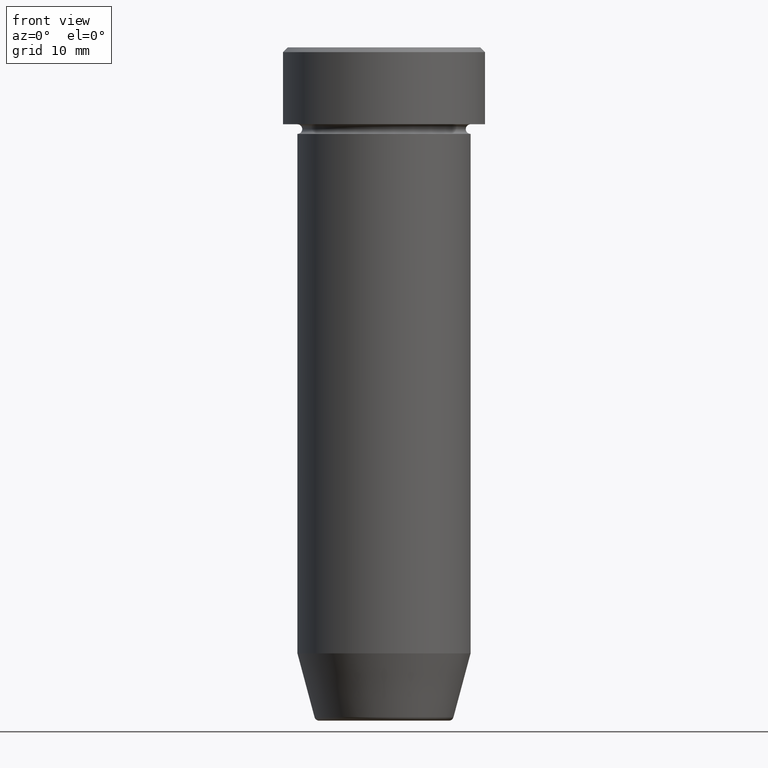
[diagram: clean part render]
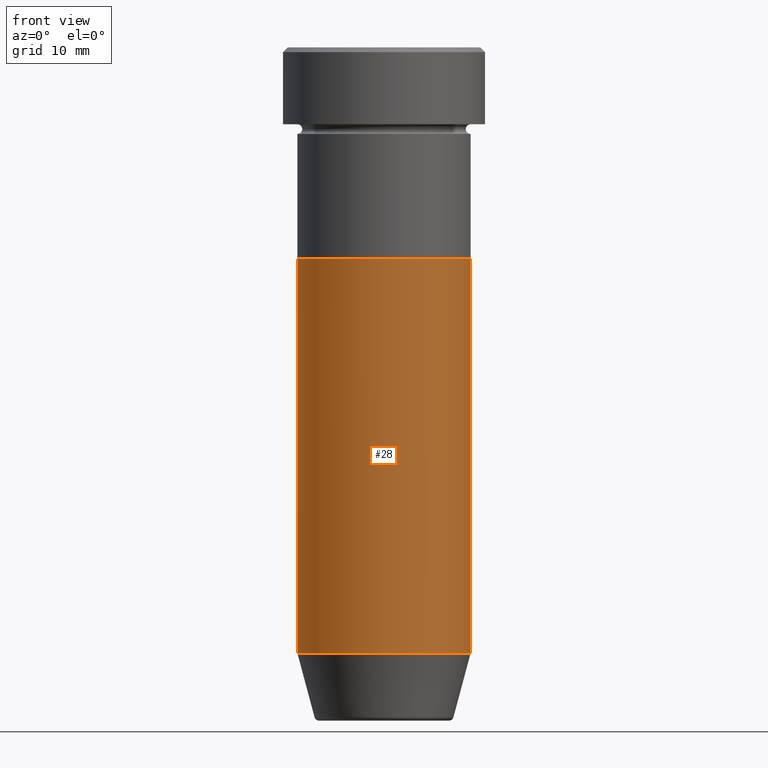
[diagram: same view with one face highlighted and labeled with its STEP entity id]
A machine part, front view. The second image highlights one B-rep face of the part: STEP entity #28.
In plain terms, the highlighted cylindrical surface (partial cylindrical patch) has radius 9 mm, axis along (-0, -0, 1).
Its self-contained STEP definition (entity closure, byte-faithful):
#28 = ADVANCED_FACE ( 'NONE', ( #471 ), #130, .T. ) ;
#30 = ORIENTED_EDGE ( 'NONE', *, *, #490, .F. ) ;
#32 = CARTESIAN_POINT ( 'NONE',  ( -9.000000000000000000, 1.102182119232617714E-15, -63.00000000000000000 ) ) ;
#57 = DIRECTION ( 'NONE',  ( 1.000000000000000000, 0.000000000000000000, 0.000000000000000000 ) ) ;
#58 = VERTEX_POINT ( 'NONE', #240 ) ;
#59 = ORIENTED_EDGE ( 'NONE', *, *, #138, .F. ) ;
#94 = CIRCLE ( 'NONE', #526, 9.000000000000000000 ) ;
#96 = CARTESIAN_POINT ( 'NONE',  ( -9.000000000000000000, 1.102182119232617714E-15, -22.00000000000000000 ) ) ;
#103 = CIRCLE ( 'NONE', #334, 9.000000000000000000 ) ;
#130 = CYLINDRICAL_SURFACE ( 'NONE', #428, 9.000000000000000000 ) ;
#138 = EDGE_CURVE ( 'NONE', #289, #460, #524, .T. ) ;
#164 = CARTESIAN_POINT ( 'NONE',  ( -9.000000000000000000, 1.102182119232617714E-15, 0.000000000000000000 ) ) ;
#187 = LINE ( 'NONE', #542, #293 ) ;
#188 = DIRECTION ( 'NONE',  ( 1.000000000000000000, 0.000000000000000000, 0.000000000000000000 ) ) ;
#240 = CARTESIAN_POINT ( 'NONE',  ( 9.000000000000000000, 0.000000000000000000, -63.00000000000000000 ) ) ;
#271 = DIRECTION ( 'NONE',  ( -0.000000000000000000, -0.000000000000000000, 1.000000000000000000 ) ) ;
#289 = VERTEX_POINT ( 'NONE', #32 ) ;
#293 = VECTOR ( 'NONE', #271, 1000.000000000000000 ) ;
#316 = ORIENTED_EDGE ( 'NONE', *, *, #343, .T. ) ;
#324 = CARTESIAN_POINT ( 'NONE',  ( 0.000000000000000000, 0.000000000000000000, 0.000000000000000000 ) ) ;
#334 = AXIS2_PLACEMENT_3D ( 'NONE', #519, #425, #188 ) ;
#343 = EDGE_CURVE ( 'NONE', #58, #591, #187, .T. ) ;
#356 = DIRECTION ( 'NONE',  ( -0.000000000000000000, -0.000000000000000000, 1.000000000000000000 ) ) ;
#367 = DIRECTION ( 'NONE',  ( 1.000000000000000000, 0.000000000000000000, 0.000000000000000000 ) ) ;
#387 = DIRECTION ( 'NONE',  ( -0.000000000000000000, -0.000000000000000000, 1.000000000000000000 ) ) ;
#389 = CARTESIAN_POINT ( 'NONE',  ( 0.000000000000000000, 0.000000000000000000, -63.00000000000000000 ) ) ;
#425 = DIRECTION ( 'NONE',  ( -0.000000000000000000, -0.000000000000000000, 1.000000000000000000 ) ) ;
#428 = AXIS2_PLACEMENT_3D ( 'NONE', #324, #583, #367 ) ;
#460 = VERTEX_POINT ( 'NONE', #96 ) ;
#462 = VECTOR ( 'NONE', #356, 1000.000000000000000 ) ;
#471 = FACE_OUTER_BOUND ( 'NONE', #588, .T. ) ;
#484 = CARTESIAN_POINT ( 'NONE',  ( 9.000000000000000000, 0.000000000000000000, -22.00000000000000000 ) ) ;
#490 = EDGE_CURVE ( 'NONE', #460, #591, #103, .T. ) ;
#519 = CARTESIAN_POINT ( 'NONE',  ( 0.000000000000000000, 0.000000000000000000, -22.00000000000000000 ) ) ;
#524 = LINE ( 'NONE', #164, #462 ) ;
#526 = AXIS2_PLACEMENT_3D ( 'NONE', #389, #387, #57 ) ;
#542 = CARTESIAN_POINT ( 'NONE',  ( 9.000000000000000000, 0.000000000000000000, 0.000000000000000000 ) ) ;
#550 = EDGE_CURVE ( 'NONE', #289, #58, #94, .T. ) ;
#552 = ORIENTED_EDGE ( 'NONE', *, *, #550, .T. ) ;
#583 = DIRECTION ( 'NONE',  ( -0.000000000000000000, -0.000000000000000000, 1.000000000000000000 ) ) ;
#588 = EDGE_LOOP ( 'NONE', ( #59, #552, #316, #30 ) ) ;
#591 = VERTEX_POINT ( 'NONE', #484 ) ;